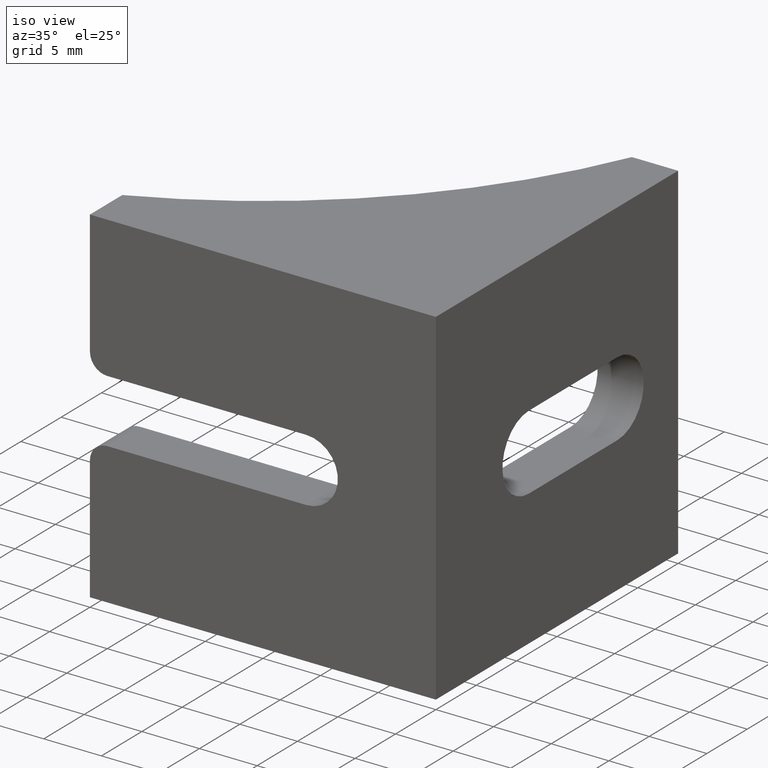
[diagram: clean part render]
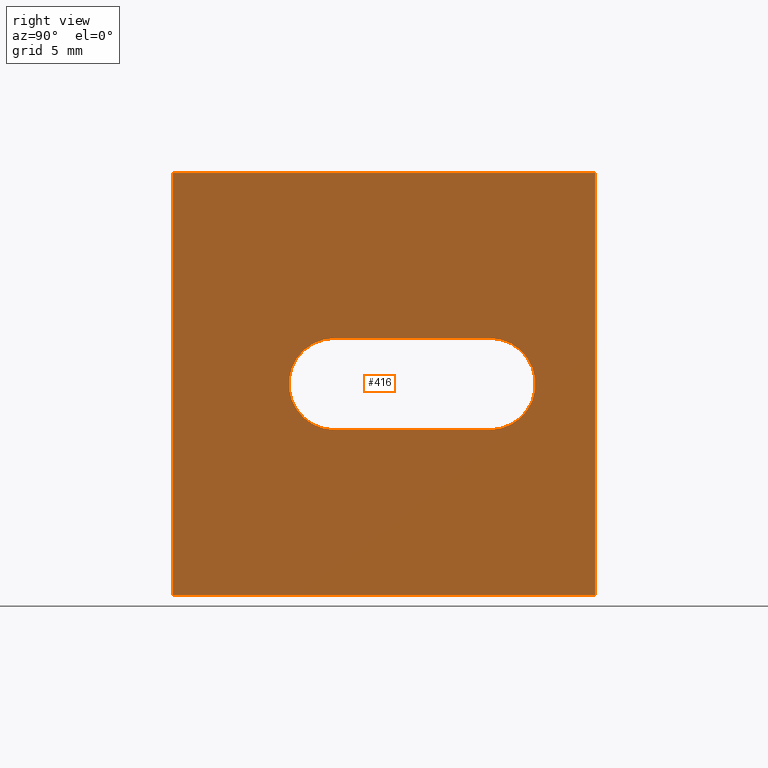
[diagram: tour spotlight — one face highlighted and labeled with its STEP entity id]
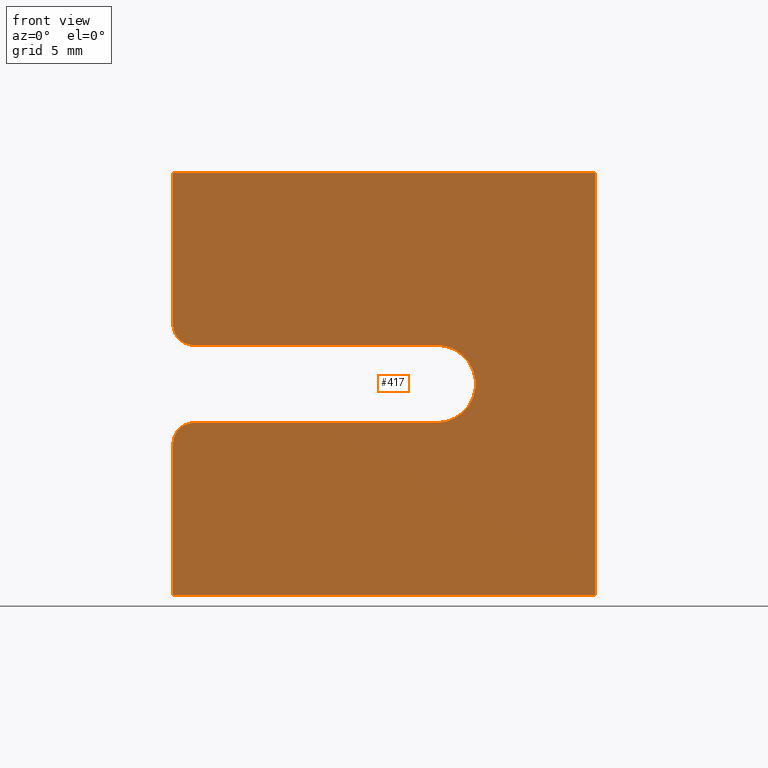
[diagram: tour spotlight — one face highlighted and labeled with its STEP entity id]
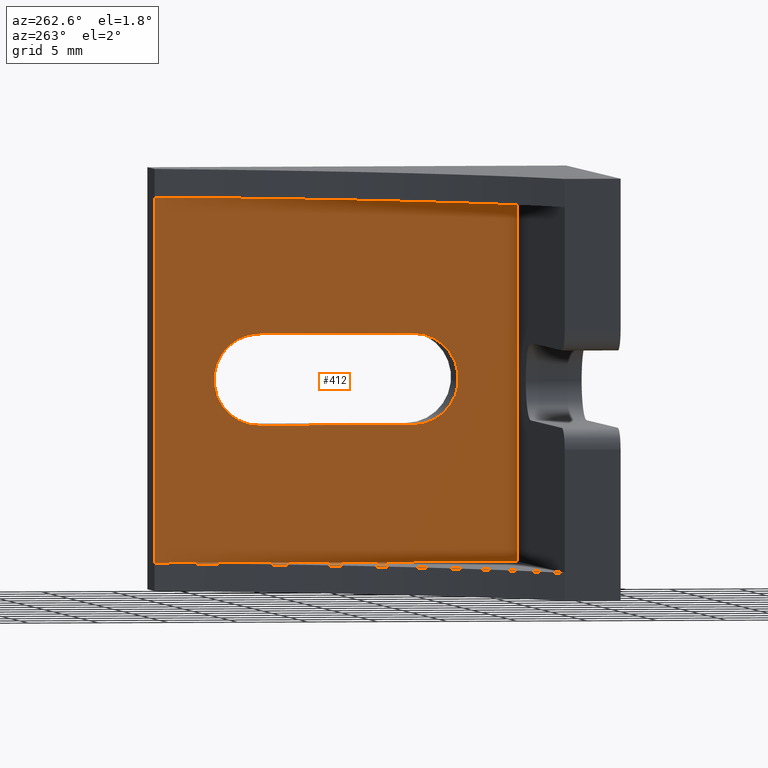
[diagram: tour spotlight — one face highlighted and labeled with its STEP entity id]
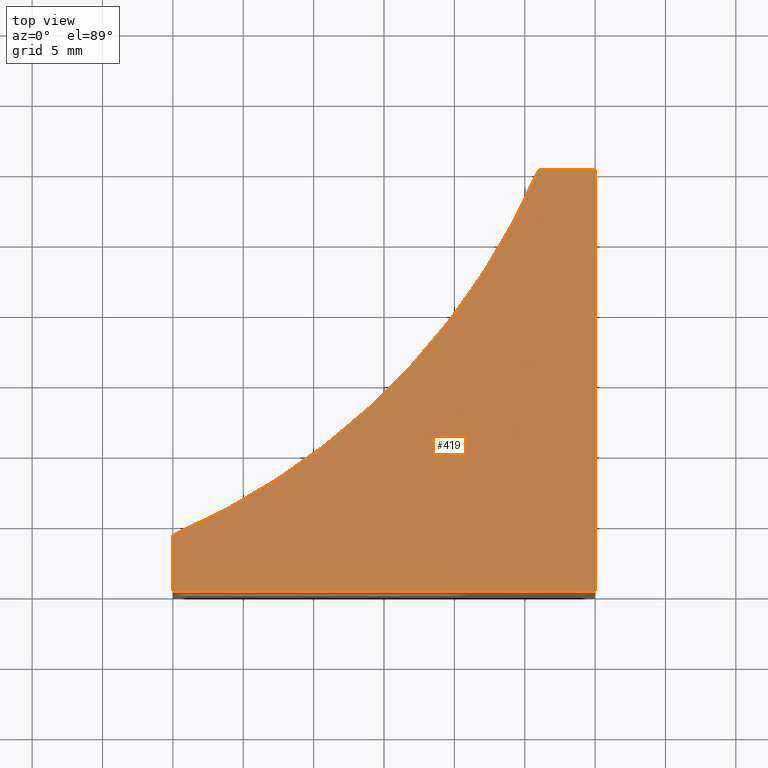
[diagram: tour spotlight — one face highlighted and labeled with its STEP entity id]
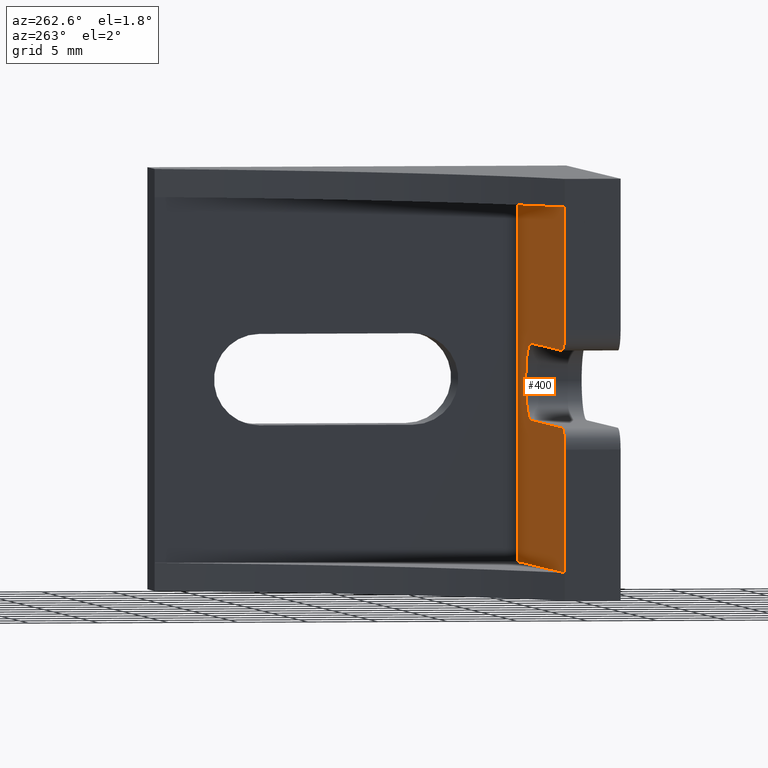
[diagram: tour spotlight — one face highlighted and labeled with its STEP entity id]
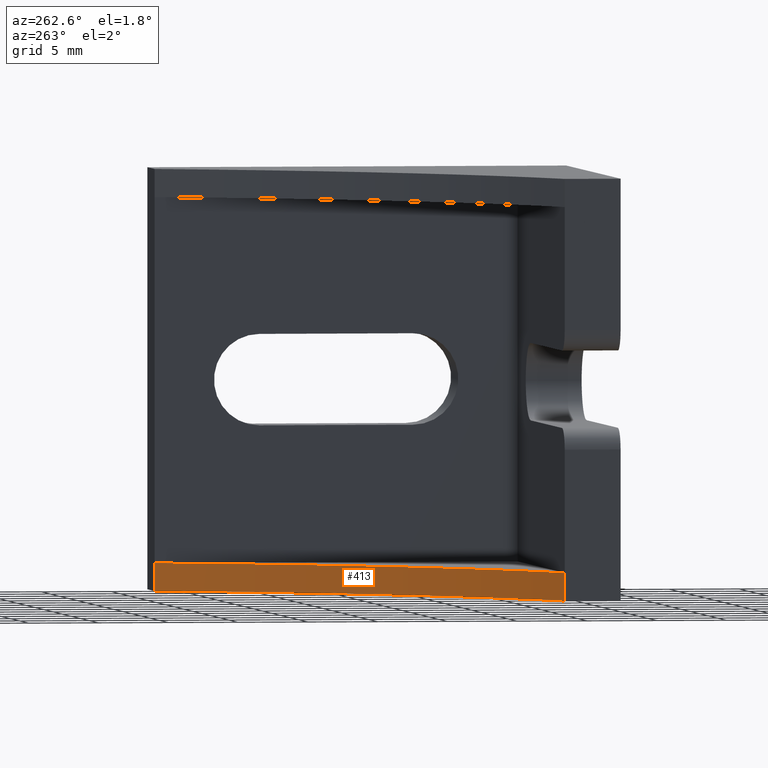
[diagram: tour spotlight — one face highlighted and labeled with its STEP entity id]
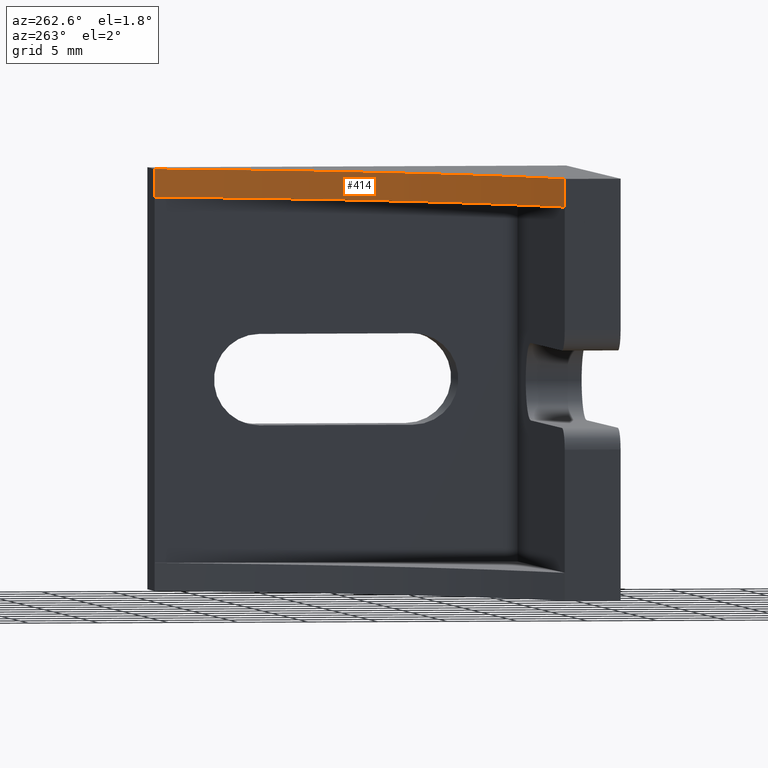
[diagram: tour spotlight — one face highlighted and labeled with its STEP entity id]
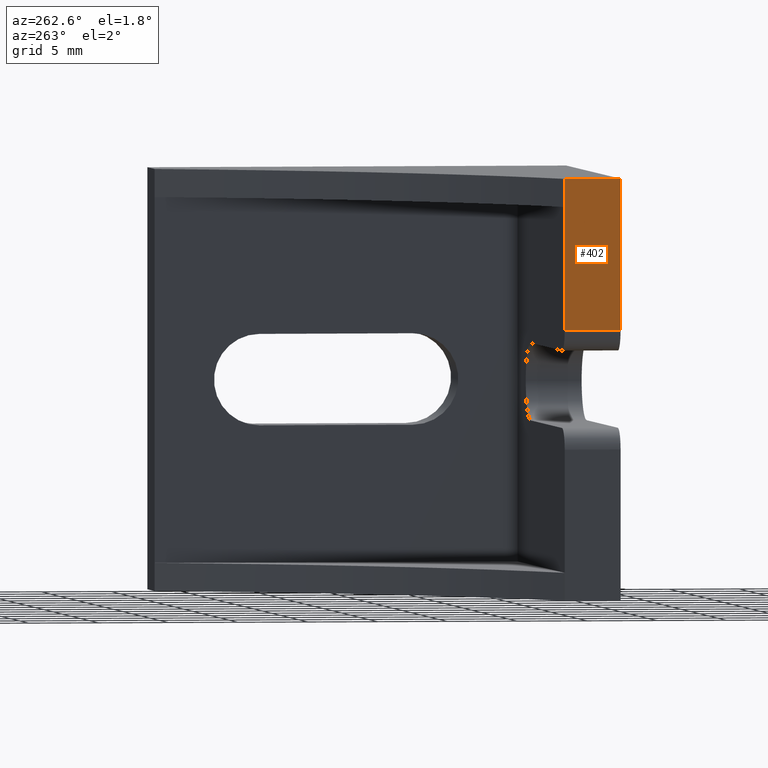
[diagram: tour spotlight — one face highlighted and labeled with its STEP entity id]
A machine part: a face-by-face anatomy tour. The part has 22 B-rep faces; the first image is the clean iso view, then the 8 largest visible faces are spotlighted one at a time (largest first), each with its STEP entity span.

Face 1 — right view, entity #416. In plain terms, the highlighted planar face has unit normal (1, 0, 0).
Definition (entity closure, byte-faithful):
#16=FACE_BOUND('',#72,.T.);
#17=FACE_BOUND('',#73,.T.);
#29=PLANE('',#455);
#72=EDGE_LOOP('',(#360,#361,#362,#363));
#73=EDGE_LOOP('',(#364,#365,#366,#367));
#100=LINE('',#640,#144);
#104=LINE('',#652,#148);
#114=LINE('',#683,#158);
#116=LINE('',#687,#160);
#117=LINE('',#689,#161);
#118=LINE('',#690,#162);
#144=VECTOR('',#514,11.);
#148=VECTOR('',#526,11.);
#158=VECTOR('',#562,30.);
#160=VECTOR('',#566,30.);
#161=VECTOR('',#567,30.);
#162=VECTOR('',#568,30.);
#172=CIRCLE('',#440,3.25);
#174=CIRCLE('',#444,3.25);
#201=VERTEX_POINT('',#637);
#202=VERTEX_POINT('',#639);
#204=VERTEX_POINT('',#645);
#206=VERTEX_POINT('',#651);
#213=VERTEX_POINT('',#680);
#214=VERTEX_POINT('',#682);
#215=VERTEX_POINT('',#686);
#216=VERTEX_POINT('',#688);
#246=EDGE_CURVE('',#202,#201,#100,.T.);
#249=EDGE_CURVE('',#204,#202,#172,.T.);
#252=EDGE_CURVE('',#206,#204,#104,.T.);
#255=EDGE_CURVE('',#201,#206,#174,.T.);
#268=EDGE_CURVE('',#213,#214,#114,.T.);
#270=EDGE_CURVE('',#213,#215,#116,.T.);
#271=EDGE_CURVE('',#216,#215,#117,.T.);
#272=EDGE_CURVE('',#214,#216,#118,.T.);
#360=ORIENTED_EDGE('',*,*,#252,.T.);
#361=ORIENTED_EDGE('',*,*,#249,.T.);
#362=ORIENTED_EDGE('',*,*,#246,.T.);
#363=ORIENTED_EDGE('',*,*,#255,.T.);
#364=ORIENTED_EDGE('',*,*,#268,.F.);
#365=ORIENTED_EDGE('',*,*,#270,.T.);
#366=ORIENTED_EDGE('',*,*,#271,.F.);
#367=ORIENTED_EDGE('',*,*,#272,.F.);
#416=ADVANCED_FACE('',(#16,#17),#29,.T.);
#440=AXIS2_PLACEMENT_3D('',#646,#520,#521);
#444=AXIS2_PLACEMENT_3D('',#656,#532,#533);
#455=AXIS2_PLACEMENT_3D('',#685,#564,#565);
#514=DIRECTION('',(0.,1.,-2.01858731750028E-016));
#520=DIRECTION('center_axis',(-1.,0.,0.));
#521=DIRECTION('ref_axis',(0.,0.,1.));
#526=DIRECTION('',(0.,-1.,0.));
#532=DIRECTION('center_axis',(-1.,0.,0.));
#533=DIRECTION('ref_axis',(0.,0.,-1.));
#562=DIRECTION('',(0.,-1.,0.));
#564=DIRECTION('center_axis',(1.,0.,0.));
#565=DIRECTION('ref_axis',(0.,1.,0.));
#566=DIRECTION('',(0.,0.,1.));
#567=DIRECTION('',(0.,1.,0.));
#568=DIRECTION('',(0.,0.,1.));
#637=CARTESIAN_POINT('',(15.,7.5,18.25));
#639=CARTESIAN_POINT('',(15.,-3.5,18.25));
#640=CARTESIAN_POINT('',(15.,-9.25,18.25));
#645=CARTESIAN_POINT('',(15.,-3.5,11.75));
#646=CARTESIAN_POINT('Origin',(15.,-3.5,15.));
#651=CARTESIAN_POINT('',(15.,7.5,11.75));
#652=CARTESIAN_POINT('',(15.,-3.75,11.75));
#656=CARTESIAN_POINT('Origin',(15.,7.5,15.));
#680=CARTESIAN_POINT('',(15.,15.,0.));
#682=CARTESIAN_POINT('',(15.,-15.,0.));
#683=CARTESIAN_POINT('',(15.,15.,0.));
#685=CARTESIAN_POINT('Origin',(15.,-15.,0.));
#686=CARTESIAN_POINT('',(15.,15.,30.));
#687=CARTESIAN_POINT('',(15.,15.,0.));
#688=CARTESIAN_POINT('',(15.,-15.,30.));
#689=CARTESIAN_POINT('',(15.,15.,30.));
#690=CARTESIAN_POINT('',(15.,-15.,0.));

Face 2 — front view, entity #417. In plain terms, the highlighted planar face has unit normal (0, -1, 0).
Definition (entity closure, byte-faithful):
#30=PLANE('',#456);
#50=FACE_OUTER_BOUND('',#74,.T.);
#74=EDGE_LOOP('',(#368,#369,#370,#371,#372,#373,#374,#375,#376,#377));
#82=LINE('',#594,#126);
#91=LINE('',#619,#135);
#94=LINE('',#625,#138);
#97=LINE('',#632,#141);
#115=LINE('',#684,#159);
#118=LINE('',#690,#162);
#119=LINE('',#692,#163);
#126=VECTOR('',#474,10.75);
#135=VECTOR('',#495,10.75);
#138=VECTOR('',#500,17.25);
#141=VECTOR('',#509,17.25);
#159=VECTOR('',#563,30.);
#162=VECTOR('',#568,30.);
#163=VECTOR('',#571,30.);
#166=CIRCLE('',#425,1.5);
#169=CIRCLE('',#431,1.5);
#170=CIRCLE('',#435,2.75);
#181=VERTEX_POINT('',#582);
#182=VERTEX_POINT('',#584);
#185=VERTEX_POINT('',#592);
#193=VERTEX_POINT('',#612);
#194=VERTEX_POINT('',#613);
#195=VERTEX_POINT('',#618);
#197=VERTEX_POINT('',#624);
#198=VERTEX_POINT('',#628);
#214=VERTEX_POINT('',#682);
#216=VERTEX_POINT('',#688);
#219=EDGE_CURVE('',#181,#182,#166,.T.);
#224=EDGE_CURVE('',#185,#181,#82,.T.);
#233=EDGE_CURVE('',#193,#194,#169,.T.);
#236=EDGE_CURVE('',#194,#195,#91,.T.);
#239=EDGE_CURVE('',#197,#182,#94,.T.);
#241=EDGE_CURVE('',#198,#197,#170,.T.);
#243=EDGE_CURVE('',#193,#198,#97,.T.);
#269=EDGE_CURVE('',#214,#185,#115,.T.);
#272=EDGE_CURVE('',#214,#216,#118,.T.);
#273=EDGE_CURVE('',#195,#216,#119,.T.);
#368=ORIENTED_EDGE('',*,*,#219,.F.);
#369=ORIENTED_EDGE('',*,*,#224,.F.);
#370=ORIENTED_EDGE('',*,*,#269,.F.);
#371=ORIENTED_EDGE('',*,*,#272,.T.);
#372=ORIENTED_EDGE('',*,*,#273,.F.);
#373=ORIENTED_EDGE('',*,*,#236,.F.);
#374=ORIENTED_EDGE('',*,*,#233,.F.);
#375=ORIENTED_EDGE('',*,*,#243,.T.);
#376=ORIENTED_EDGE('',*,*,#241,.T.);
#377=ORIENTED_EDGE('',*,*,#239,.T.);
#417=ADVANCED_FACE('',(#50),#30,.T.);
#425=AXIS2_PLACEMENT_3D('',#585,#466,#467);
#431=AXIS2_PLACEMENT_3D('',#614,#489,#490);
#435=AXIS2_PLACEMENT_3D('',#629,#504,#505);
#456=AXIS2_PLACEMENT_3D('',#691,#569,#570);
#466=DIRECTION('center_axis',(0.,1.,0.));
#467=DIRECTION('ref_axis',(-0.707106781186547,0.,0.707106781186547));
#474=DIRECTION('',(0.,0.,1.));
#489=DIRECTION('center_axis',(0.,1.,0.));
#490=DIRECTION('ref_axis',(-0.707106781186547,0.,-0.707106781186547));
#495=DIRECTION('',(0.,0.,1.));
#500=DIRECTION('',(-1.,0.,0.));
#504=DIRECTION('center_axis',(0.,1.,0.));
#505=DIRECTION('ref_axis',(0.,0.,-1.));
#509=DIRECTION('',(1.,0.,0.));
#563=DIRECTION('',(-1.,0.,0.));
#568=DIRECTION('',(0.,0.,1.));
#569=DIRECTION('center_axis',(0.,-1.,0.));
#570=DIRECTION('ref_axis',(1.,0.,0.));
#571=DIRECTION('',(1.,0.,0.));
#582=CARTESIAN_POINT('',(-15.,-15.,10.75));
#584=CARTESIAN_POINT('',(-13.5,-15.,12.25));
#585=CARTESIAN_POINT('Origin',(-13.5,-15.,10.75));
#592=CARTESIAN_POINT('',(-15.,-15.,0.));
#594=CARTESIAN_POINT('',(-15.,-15.,0.));
#612=CARTESIAN_POINT('',(-13.5,-15.,17.75));
#613=CARTESIAN_POINT('',(-15.,-15.,19.25));
#614=CARTESIAN_POINT('Origin',(-13.5,-15.,19.25));
#618=CARTESIAN_POINT('',(-15.,-15.,30.));
#619=CARTESIAN_POINT('',(-15.,-15.,0.));
#624=CARTESIAN_POINT('',(3.75,-15.,12.25));
#625=CARTESIAN_POINT('',(-5.625,-15.,12.25));
#628=CARTESIAN_POINT('',(3.75,-15.,17.75));
#629=CARTESIAN_POINT('Origin',(3.75,-15.,15.));
#632=CARTESIAN_POINT('',(-15.,-15.,17.75));
#682=CARTESIAN_POINT('',(15.,-15.,0.));
#684=CARTESIAN_POINT('',(15.,-15.,0.));
#688=CARTESIAN_POINT('',(15.,-15.,30.));
#690=CARTESIAN_POINT('',(15.,-15.,0.));
#691=CARTESIAN_POINT('Origin',(-15.,-15.,0.));
#692=CARTESIAN_POINT('',(15.,-15.,30.));

Face 3 — auxiliary view, entity #412. In plain terms, the highlighted planar face has unit normal (1, 0, 0).
Definition (entity closure, byte-faithful):
#14=FACE_BOUND('',#67,.T.);
#15=FACE_BOUND('',#68,.T.);
#27=PLANE('',#449);
#67=EDGE_LOOP('',(#339,#340,#341,#342));
#68=EDGE_LOOP('',(#343,#344,#345,#346));
#87=LINE('',#609,#131);
#98=LINE('',#636,#142);
#103=LINE('',#650,#147);
#107=LINE('',#661,#151);
#109=LINE('',#668,#153);
#110=LINE('',#670,#154);
#131=VECTOR('',#485,26.);
#142=VECTOR('',#512,11.);
#147=VECTOR('',#525,11.);
#151=VECTOR('',#537,25.9979424124491);
#153=VECTOR('',#545,25.9979424124491);
#154=VECTOR('',#548,26.);
#171=CIRCLE('',#439,3.25);
#173=CIRCLE('',#443,3.25);
#191=VERTEX_POINT('',#606);
#192=VERTEX_POINT('',#608);
#199=VERTEX_POINT('',#634);
#200=VERTEX_POINT('',#635);
#203=VERTEX_POINT('',#643);
#205=VERTEX_POINT('',#649);
#207=VERTEX_POINT('',#658);
#210=VERTEX_POINT('',#665);
#231=EDGE_CURVE('',#191,#192,#87,.T.);
#244=EDGE_CURVE('',#199,#200,#98,.T.);
#248=EDGE_CURVE('',#200,#203,#171,.T.);
#251=EDGE_CURVE('',#203,#205,#103,.T.);
#254=EDGE_CURVE('',#205,#199,#173,.T.);
#257=EDGE_CURVE('',#207,#191,#107,.T.);
#261=EDGE_CURVE('',#192,#210,#109,.T.);
#262=EDGE_CURVE('',#210,#207,#110,.T.);
#339=ORIENTED_EDGE('',*,*,#251,.T.);
#340=ORIENTED_EDGE('',*,*,#254,.T.);
#341=ORIENTED_EDGE('',*,*,#244,.T.);
#342=ORIENTED_EDGE('',*,*,#248,.T.);
#343=ORIENTED_EDGE('',*,*,#262,.F.);
#344=ORIENTED_EDGE('',*,*,#261,.F.);
#345=ORIENTED_EDGE('',*,*,#231,.F.);
#346=ORIENTED_EDGE('',*,*,#257,.F.);
#412=ADVANCED_FACE('',(#14,#15),#27,.F.);
#439=AXIS2_PLACEMENT_3D('',#644,#518,#519);
#443=AXIS2_PLACEMENT_3D('',#655,#530,#531);
#449=AXIS2_PLACEMENT_3D('',#669,#546,#547);
#485=DIRECTION('',(0.,0.,-1.));
#512=DIRECTION('',(0.,-1.,2.01858731750028E-016));
#518=DIRECTION('center_axis',(1.,0.,0.));
#519=DIRECTION('ref_axis',(0.,0.,1.));
#525=DIRECTION('',(0.,1.,0.));
#530=DIRECTION('center_axis',(1.,0.,0.));
#531=DIRECTION('ref_axis',(0.,0.,-1.));
#537=DIRECTION('',(0.,-1.,3.41607084500048E-016));
#545=DIRECTION('',(0.,1.,-4.2700885562506E-016));
#546=DIRECTION('center_axis',(1.,0.,0.));
#547=DIRECTION('ref_axis',(0.,0.,-1.));
#548=DIRECTION('',(0.,0.,1.));
#606=CARTESIAN_POINT('',(11.,-10.9979424124491,28.));
#608=CARTESIAN_POINT('',(11.,-10.9979424124491,2.00000000000001));
#609=CARTESIAN_POINT('',(11.,-10.9979424124491,2.00000000000001));
#634=CARTESIAN_POINT('',(11.,7.5,18.25));
#635=CARTESIAN_POINT('',(11.,-3.5,18.25));
#636=CARTESIAN_POINT('',(11.,-0.74897120622457,18.25));
#643=CARTESIAN_POINT('',(11.,-3.5,11.75));
#644=CARTESIAN_POINT('Origin',(11.,-3.5,15.));
#649=CARTESIAN_POINT('',(11.,7.5,11.75));
#650=CARTESIAN_POINT('',(11.,4.75102879377543,11.75));
#655=CARTESIAN_POINT('Origin',(11.,7.5,15.));
#658=CARTESIAN_POINT('',(11.,15.,28.));
#661=CARTESIAN_POINT('',(11.,-10.9979424124491,28.));
#665=CARTESIAN_POINT('',(11.,15.,2.));
#668=CARTESIAN_POINT('',(11.,15.0020575875509,2.));
#669=CARTESIAN_POINT('Origin',(11.,2.00205758755086,15.));
#670=CARTESIAN_POINT('',(11.,15.,7.5));

Face 4 — top view, entity #419. In plain terms, the highlighted planar face has unit normal (0, 0, 1).
Definition (entity closure, byte-faithful):
#32=PLANE('',#458);
#52=FACE_OUTER_BOUND('',#76,.T.);
#76=EDGE_LOOP('',(#386,#387,#388,#389,#390));
#92=LINE('',#621,#136);
#117=LINE('',#689,#161);
#119=LINE('',#692,#163);
#120=LINE('',#694,#164);
#136=VECTOR('',#496,4.00205758755086);
#161=VECTOR('',#567,30.);
#163=VECTOR('',#571,30.);
#164=VECTOR('',#574,4.00205758755086);
#178=CIRCLE('',#453,50.);
#195=VERTEX_POINT('',#618);
#196=VERTEX_POINT('',#620);
#212=VERTEX_POINT('',#676);
#215=VERTEX_POINT('',#686);
#216=VERTEX_POINT('',#688);
#237=EDGE_CURVE('',#196,#195,#92,.T.);
#265=EDGE_CURVE('',#212,#196,#178,.T.);
#271=EDGE_CURVE('',#216,#215,#117,.T.);
#273=EDGE_CURVE('',#195,#216,#119,.T.);
#274=EDGE_CURVE('',#215,#212,#120,.T.);
#386=ORIENTED_EDGE('',*,*,#265,.T.);
#387=ORIENTED_EDGE('',*,*,#237,.T.);
#388=ORIENTED_EDGE('',*,*,#273,.T.);
#389=ORIENTED_EDGE('',*,*,#271,.T.);
#390=ORIENTED_EDGE('',*,*,#274,.T.);
#419=ADVANCED_FACE('',(#52),#32,.T.);
#453=AXIS2_PLACEMENT_3D('',#677,#556,#557);
#458=AXIS2_PLACEMENT_3D('',#695,#575,#576);
#496=DIRECTION('',(0.,-1.,0.));
#556=DIRECTION('center_axis',(0.,0.,-1.));
#557=DIRECTION('ref_axis',(-1.,0.,0.));
#567=DIRECTION('',(0.,1.,0.));
#571=DIRECTION('',(1.,0.,0.));
#574=DIRECTION('',(-1.,0.,0.));
#575=DIRECTION('center_axis',(0.,0.,1.));
#576=DIRECTION('ref_axis',(1.,0.,0.));
#618=CARTESIAN_POINT('',(-15.,-15.,30.));
#620=CARTESIAN_POINT('',(-15.,-10.9979424124491,30.));
#621=CARTESIAN_POINT('',(-15.,-15.,30.));
#676=CARTESIAN_POINT('',(10.9979424124491,15.,30.));
#677=CARTESIAN_POINT('Origin',(-34.88,34.88,30.));
#686=CARTESIAN_POINT('',(15.,15.,30.));
#688=CARTESIAN_POINT('',(15.,-15.,30.));
#689=CARTESIAN_POINT('',(15.,15.,30.));
#692=CARTESIAN_POINT('',(15.,-15.,30.));
#694=CARTESIAN_POINT('',(-15.,15.,30.));
#695=CARTESIAN_POINT('Origin',(0.,0.,30.));

Face 5 — auxiliary view, entity #400. In plain terms, the highlighted planar face has unit normal (0, -1, 0).
Definition (entity closure, byte-faithful):
#19=PLANE('',#427);
#35=FACE_OUTER_BOUND('',#55,.T.);
#55=EDGE_LOOP('',(#284,#285,#286,#287,#288,#289,#290,#291,#292,#293));
#79=LINE('',#589,#123);
#83=LINE('',#597,#127);
#84=LINE('',#601,#128);
#85=LINE('',#605,#129);
#86=LINE('',#607,#130);
#87=LINE('',#609,#131);
#88=LINE('',#610,#132);
#123=VECTOR('',#471,8.75);
#127=VECTOR('',#477,17.25);
#128=VECTOR('',#480,17.25);
#129=VECTOR('',#483,8.75000000000001);
#130=VECTOR('',#484,26.);
#131=VECTOR('',#485,26.);
#132=VECTOR('',#486,26.);
#165=CIRCLE('',#424,1.5);
#167=CIRCLE('',#428,2.75);
#168=CIRCLE('',#429,1.5);
#179=VERTEX_POINT('',#579);
#180=VERTEX_POINT('',#580);
#183=VERTEX_POINT('',#588);
#186=VERTEX_POINT('',#596);
#187=VERTEX_POINT('',#598);
#188=VERTEX_POINT('',#600);
#189=VERTEX_POINT('',#602);
#190=VERTEX_POINT('',#604);
#191=VERTEX_POINT('',#606);
#192=VERTEX_POINT('',#608);
#217=EDGE_CURVE('',#179,#180,#165,.T.);
#221=EDGE_CURVE('',#180,#183,#79,.T.);
#225=EDGE_CURVE('',#179,#186,#83,.T.);
#226=EDGE_CURVE('',#186,#187,#167,.T.);
#227=EDGE_CURVE('',#187,#188,#84,.T.);
#228=EDGE_CURVE('',#189,#188,#168,.T.);
#229=EDGE_CURVE('',#190,#189,#85,.T.);
#230=EDGE_CURVE('',#190,#191,#86,.T.);
#231=EDGE_CURVE('',#191,#192,#87,.T.);
#232=EDGE_CURVE('',#183,#192,#88,.T.);
#284=ORIENTED_EDGE('',*,*,#217,.F.);
#285=ORIENTED_EDGE('',*,*,#225,.T.);
#286=ORIENTED_EDGE('',*,*,#226,.T.);
#287=ORIENTED_EDGE('',*,*,#227,.T.);
#288=ORIENTED_EDGE('',*,*,#228,.F.);
#289=ORIENTED_EDGE('',*,*,#229,.F.);
#290=ORIENTED_EDGE('',*,*,#230,.T.);
#291=ORIENTED_EDGE('',*,*,#231,.T.);
#292=ORIENTED_EDGE('',*,*,#232,.F.);
#293=ORIENTED_EDGE('',*,*,#221,.F.);
#400=ADVANCED_FACE('',(#35),#19,.F.);
#424=AXIS2_PLACEMENT_3D('',#581,#463,#464);
#427=AXIS2_PLACEMENT_3D('',#595,#475,#476);
#428=AXIS2_PLACEMENT_3D('',#599,#478,#479);
#429=AXIS2_PLACEMENT_3D('',#603,#481,#482);
#463=DIRECTION('center_axis',(0.,-1.,0.));
#464=DIRECTION('ref_axis',(-0.707106781186547,0.,0.707106781186547));
#471=DIRECTION('',(0.,0.,-1.));
#475=DIRECTION('center_axis',(0.,-1.,0.));
#476=DIRECTION('ref_axis',(0.,0.,-1.));
#477=DIRECTION('',(1.,0.,0.));
#478=DIRECTION('center_axis',(0.,-1.,0.));
#479=DIRECTION('ref_axis',(0.,0.,-1.));
#480=DIRECTION('',(-1.,0.,0.));
#481=DIRECTION('center_axis',(0.,-1.,0.));
#482=DIRECTION('ref_axis',(-0.707106781186547,0.,-0.707106781186547));
#483=DIRECTION('',(0.,0.,-1.));
#484=DIRECTION('',(1.,0.,0.));
#485=DIRECTION('',(0.,0.,-1.));
#486=DIRECTION('',(1.,0.,0.));
#579=CARTESIAN_POINT('',(-13.5,-10.9979424124491,12.25));
#580=CARTESIAN_POINT('',(-15.,-10.9979424124491,10.75));
#581=CARTESIAN_POINT('Origin',(-13.5,-10.9979424124491,10.75));
#588=CARTESIAN_POINT('',(-15.,-10.9979424124491,2.00000000000001));
#589=CARTESIAN_POINT('',(-15.,-10.9979424124491,30.));
#595=CARTESIAN_POINT('Origin',(-15.,-10.9979424124491,28.));
#596=CARTESIAN_POINT('',(3.75,-10.9979424124491,12.25));
#597=CARTESIAN_POINT('',(-5.625,-10.9979424124491,12.25));
#598=CARTESIAN_POINT('',(3.75,-10.9979424124491,17.75));
#599=CARTESIAN_POINT('Origin',(3.75,-10.9979424124491,15.));
#600=CARTESIAN_POINT('',(-13.5,-10.9979424124491,17.75));
#601=CARTESIAN_POINT('',(-15.,-10.9979424124491,17.75));
#602=CARTESIAN_POINT('',(-15.,-10.9979424124491,19.25));
#603=CARTESIAN_POINT('Origin',(-13.5,-10.9979424124491,19.25));
#604=CARTESIAN_POINT('',(-15.,-10.9979424124491,28.));
#605=CARTESIAN_POINT('',(-15.,-10.9979424124491,30.));
#606=CARTESIAN_POINT('',(11.,-10.9979424124491,28.));
#607=CARTESIAN_POINT('',(-15.,-10.9979424124491,28.));
#608=CARTESIAN_POINT('',(11.,-10.9979424124491,2.00000000000001));
#609=CARTESIAN_POINT('',(11.,-10.9979424124491,2.00000000000001));
#610=CARTESIAN_POINT('',(-15.,-10.9979424124491,2.00000000000001));

Face 6 — auxiliary view, entity #413. In plain terms, the highlighted cylindrical surface (partial cylindrical patch) has radius 50 mm, axis along (0, 0, -1).
Definition (entity closure, byte-faithful):
#47=FACE_OUTER_BOUND('',#69,.T.);
#69=EDGE_LOOP('',(#347,#348,#349,#350));
#80=LINE('',#591,#124);
#111=LINE('',#673,#155);
#124=VECTOR('',#472,2.00000000000001);
#155=VECTOR('',#551,2.);
#176=CIRCLE('',#448,50.);
#177=CIRCLE('',#451,50.);
#183=VERTEX_POINT('',#588);
#184=VERTEX_POINT('',#590);
#209=VERTEX_POINT('',#664);
#211=VERTEX_POINT('',#672);
#222=EDGE_CURVE('',#183,#184,#80,.T.);
#260=EDGE_CURVE('',#183,#209,#176,.T.);
#263=EDGE_CURVE('',#211,#209,#111,.T.);
#264=EDGE_CURVE('',#184,#211,#177,.T.);
#347=ORIENTED_EDGE('',*,*,#260,.T.);
#348=ORIENTED_EDGE('',*,*,#263,.F.);
#349=ORIENTED_EDGE('',*,*,#264,.F.);
#350=ORIENTED_EDGE('',*,*,#222,.F.);
#396=CYLINDRICAL_SURFACE('',#450,50.);
#413=ADVANCED_FACE('',(#47),#396,.F.);
#448=AXIS2_PLACEMENT_3D('',#667,#543,#544);
#450=AXIS2_PLACEMENT_3D('',#671,#549,#550);
#451=AXIS2_PLACEMENT_3D('',#674,#552,#553);
#472=DIRECTION('',(0.,0.,-1.));
#543=DIRECTION('center_axis',(0.,4.2700885562506E-016,1.));
#544=DIRECTION('ref_axis',(-1.,0.,0.));
#549=DIRECTION('center_axis',(0.,0.,-1.));
#550=DIRECTION('ref_axis',(-1.,0.,0.));
#551=DIRECTION('',(0.,0.,1.));
#552=DIRECTION('center_axis',(0.,0.,1.));
#553=DIRECTION('ref_axis',(-1.,0.,0.));
#588=CARTESIAN_POINT('',(-15.,-10.9979424124491,2.00000000000001));
#590=CARTESIAN_POINT('',(-15.,-10.9979424124491,0.));
#591=CARTESIAN_POINT('',(-15.,-10.9979424124491,30.));
#664=CARTESIAN_POINT('',(10.9979424124491,15.,2.));
#667=CARTESIAN_POINT('Origin',(-34.88,34.88,2.00000000000001));
#671=CARTESIAN_POINT('Origin',(-34.88,34.88,30.));
#672=CARTESIAN_POINT('',(10.9979424124491,15.,0.));
#673=CARTESIAN_POINT('',(10.9979424124491,15.,30.));
#674=CARTESIAN_POINT('Origin',(-34.88,34.88,0.));

Face 7 — auxiliary view, entity #414. In plain terms, the highlighted cylindrical surface (partial cylindrical patch) has radius 50 mm, axis along (0, 0, -1).
Definition (entity closure, byte-faithful):
#48=FACE_OUTER_BOUND('',#70,.T.);
#70=EDGE_LOOP('',(#351,#352,#353,#354));
#93=LINE('',#622,#137);
#112=LINE('',#678,#156);
#137=VECTOR('',#497,1.99999999999999);
#156=VECTOR('',#558,2.);
#175=CIRCLE('',#446,50.);
#178=CIRCLE('',#453,50.);
#190=VERTEX_POINT('',#604);
#196=VERTEX_POINT('',#620);
#208=VERTEX_POINT('',#659);
#212=VERTEX_POINT('',#676);
#238=EDGE_CURVE('',#196,#190,#93,.T.);
#258=EDGE_CURVE('',#208,#190,#175,.T.);
#265=EDGE_CURVE('',#212,#196,#178,.T.);
#266=EDGE_CURVE('',#208,#212,#112,.T.);
#351=ORIENTED_EDGE('',*,*,#258,.T.);
#352=ORIENTED_EDGE('',*,*,#238,.F.);
#353=ORIENTED_EDGE('',*,*,#265,.F.);
#354=ORIENTED_EDGE('',*,*,#266,.F.);
#397=CYLINDRICAL_SURFACE('',#452,50.);
#414=ADVANCED_FACE('',(#48),#397,.F.);
#446=AXIS2_PLACEMENT_3D('',#662,#538,#539);
#452=AXIS2_PLACEMENT_3D('',#675,#554,#555);
#453=AXIS2_PLACEMENT_3D('',#677,#556,#557);
#497=DIRECTION('',(0.,0.,-1.));
#538=DIRECTION('center_axis',(0.,-3.41607084500048E-016,-1.));
#539=DIRECTION('ref_axis',(-1.,0.,0.));
#554=DIRECTION('center_axis',(0.,0.,-1.));
#555=DIRECTION('ref_axis',(-1.,0.,0.));
#556=DIRECTION('center_axis',(0.,0.,-1.));
#557=DIRECTION('ref_axis',(-1.,0.,0.));
#558=DIRECTION('',(0.,0.,1.));
#604=CARTESIAN_POINT('',(-15.,-10.9979424124491,28.));
#620=CARTESIAN_POINT('',(-15.,-10.9979424124491,30.));
#622=CARTESIAN_POINT('',(-15.,-10.9979424124491,30.));
#659=CARTESIAN_POINT('',(10.9979424124491,15.,28.));
#662=CARTESIAN_POINT('Origin',(-34.88,34.88,28.));
#675=CARTESIAN_POINT('Origin',(-34.88,34.88,30.));
#676=CARTESIAN_POINT('',(10.9979424124491,15.,30.));
#677=CARTESIAN_POINT('Origin',(-34.88,34.88,30.));
#678=CARTESIAN_POINT('',(10.9979424124491,15.,30.));

Face 8 — auxiliary view, entity #402. In plain terms, the highlighted planar face has unit normal (-1, 0, 0).
Definition (entity closure, byte-faithful):
#20=PLANE('',#432);
#37=FACE_OUTER_BOUND('',#57,.T.);
#57=EDGE_LOOP('',(#298,#299,#300,#301,#302));
#85=LINE('',#605,#129);
#89=LINE('',#615,#133);
#91=LINE('',#619,#135);
#92=LINE('',#621,#136);
#93=LINE('',#622,#137);
#129=VECTOR('',#483,8.75000000000001);
#133=VECTOR('',#491,4.00205758755086);
#135=VECTOR('',#495,10.75);
#136=VECTOR('',#496,4.00205758755086);
#137=VECTOR('',#497,1.99999999999999);
#189=VERTEX_POINT('',#602);
#190=VERTEX_POINT('',#604);
#194=VERTEX_POINT('',#613);
#195=VERTEX_POINT('',#618);
#196=VERTEX_POINT('',#620);
#229=EDGE_CURVE('',#190,#189,#85,.T.);
#234=EDGE_CURVE('',#194,#189,#89,.T.);
#236=EDGE_CURVE('',#194,#195,#91,.T.);
#237=EDGE_CURVE('',#196,#195,#92,.T.);
#238=EDGE_CURVE('',#196,#190,#93,.T.);
#298=ORIENTED_EDGE('',*,*,#234,.F.);
#299=ORIENTED_EDGE('',*,*,#236,.T.);
#300=ORIENTED_EDGE('',*,*,#237,.F.);
#301=ORIENTED_EDGE('',*,*,#238,.T.);
#302=ORIENTED_EDGE('',*,*,#229,.T.);
#402=ADVANCED_FACE('',(#37),#20,.T.);
#432=AXIS2_PLACEMENT_3D('',#617,#493,#494);
#483=DIRECTION('',(0.,0.,-1.));
#491=DIRECTION('',(0.,1.,0.));
#493=DIRECTION('center_axis',(-1.,0.,0.));
#494=DIRECTION('ref_axis',(0.,-1.,0.));
#495=DIRECTION('',(0.,0.,1.));
#496=DIRECTION('',(0.,-1.,0.));
#497=DIRECTION('',(0.,0.,-1.));
#602=CARTESIAN_POINT('',(-15.,-10.9979424124491,19.25));
#604=CARTESIAN_POINT('',(-15.,-10.9979424124491,28.));
#605=CARTESIAN_POINT('',(-15.,-10.9979424124491,30.));
#613=CARTESIAN_POINT('',(-15.,-15.,19.25));
#615=CARTESIAN_POINT('',(-15.,0.,19.25));
#617=CARTESIAN_POINT('Origin',(-15.,15.,0.));
#618=CARTESIAN_POINT('',(-15.,-15.,30.));
#619=CARTESIAN_POINT('',(-15.,-15.,0.));
#620=CARTESIAN_POINT('',(-15.,-10.9979424124491,30.));
#621=CARTESIAN_POINT('',(-15.,-15.,30.));
#622=CARTESIAN_POINT('',(-15.,-10.9979424124491,30.));